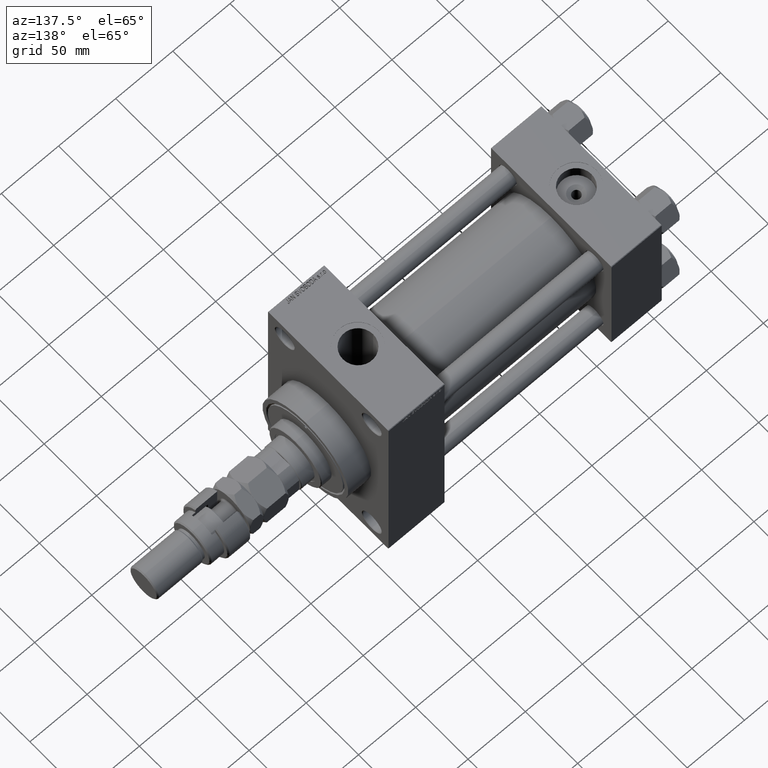
[diagram: clean part render]
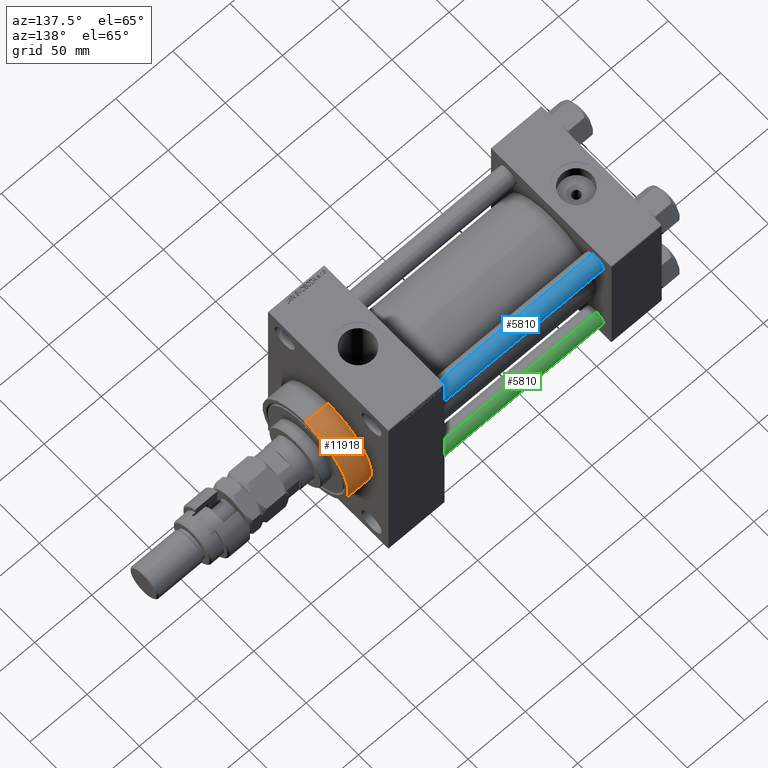
[diagram: same view with three faces highlighted in distinct colors, each labeled with its STEP entity id]
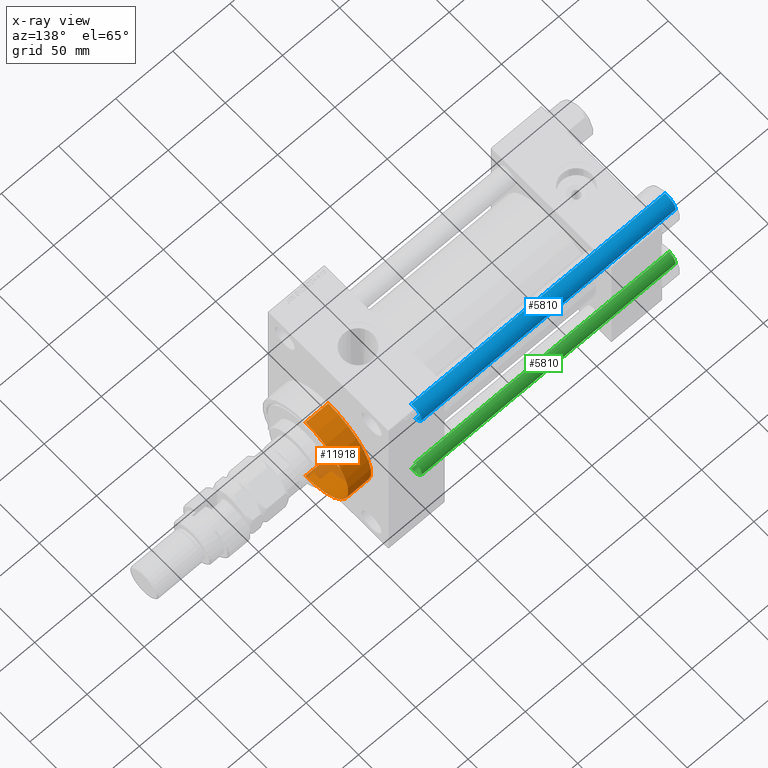
[diagram: x-ray of the same camera — body ghosted, the three highlighted faces saturated]
A machine part, auxiliary view with three faces highlighted in distinct colors.
The next image is the same camera in x-ray (body ghosted, the three faces saturated) — at least one of them is partly hidden behind the body in this view.
Their STEP definitions:

[orange] entity #11918 — the highlighted cylindrical surface (partial cylindrical patch) has radius 41 mm, axis along (-1, -0, -0).
#275 = CARTESIAN_POINT ( 'NONE',  ( 239.0000000000000000, 0.000000000000000000, 0.000000000000000000 ) ) ;
#1669 = AXIS2_PLACEMENT_3D ( 'NONE', #14597, #45898, #21806 ) ;
#2297 = EDGE_LOOP ( 'NONE', ( #18100, #43484, #4691, #24209 ) ) ;
#4691 = ORIENTED_EDGE ( 'NONE', *, *, #40586, .T. ) ;
#6084 = CARTESIAN_POINT ( 'NONE',  ( 259.0000000000000000, 0.000000000000000000, 0.000000000000000000 ) ) ;
#7236 = EDGE_CURVE ( 'NONE', #40888, #41967, #33346, .T. ) ;
#10620 = AXIS2_PLACEMENT_3D ( 'NONE', #6084, #25619, #32830 ) ;
#11918 = ADVANCED_FACE ( 'NONE', ( #26136 ), #45354, .T. ) ;
#12090 = DIRECTION ( 'NONE',  ( 0.000000000000000000, 0.000000000000000000, -1.000000000000000000 ) ) ;
#13815 = CARTESIAN_POINT ( 'NONE',  ( 259.0000000000000000, 0.000000000000000000, 41.00000000000000000 ) ) ;
#14597 = CARTESIAN_POINT ( 'NONE',  ( 259.0000000000000000, 0.000000000000000000, 0.000000000000000000 ) ) ;
#15428 = VERTEX_POINT ( 'NONE', #42956 ) ;
#17822 = CIRCLE ( 'NONE', #18652, 41.00000000000000000 ) ;
#18100 = ORIENTED_EDGE ( 'NONE', *, *, #45056, .F. ) ;
#18652 = AXIS2_PLACEMENT_3D ( 'NONE', #275, #50588, #12090 ) ;
#21366 = CIRCLE ( 'NONE', #1669, 41.00000000000000000 ) ;
#21806 = DIRECTION ( 'NONE',  ( 0.000000000000000000, 0.000000000000000000, -1.000000000000000000 ) ) ;
#24209 = ORIENTED_EDGE ( 'NONE', *, *, #7236, .F. ) ;
#25619 = DIRECTION ( 'NONE',  ( -1.000000000000000000, -0.000000000000000000, -0.000000000000000000 ) ) ;
#26136 = FACE_OUTER_BOUND ( 'NONE', #2297, .T. ) ;
#26242 = EDGE_CURVE ( 'NONE', #30637, #15428, #27209, .T. ) ;
#27209 = LINE ( 'NONE', #46688, #31353 ) ;
#29486 = DIRECTION ( 'NONE',  ( -1.000000000000000000, -0.000000000000000000, -0.000000000000000000 ) ) ;
#30637 = VERTEX_POINT ( 'NONE', #50471 ) ;
#31353 = VECTOR ( 'NONE', #42838, 1000.000000000000000 ) ;
#32826 = CARTESIAN_POINT ( 'NONE',  ( 239.0000000000000000, 0.000000000000000000, 41.00000000000000000 ) ) ;
#32830 = DIRECTION ( 'NONE',  ( 0.000000000000000000, 0.000000000000000000, 1.000000000000000000 ) ) ;
#33346 = LINE ( 'NONE', #13815, #50736 ) ;
#40586 = EDGE_CURVE ( 'NONE', #15428, #41967, #17822, .T. ) ;
#40888 = VERTEX_POINT ( 'NONE', #49255 ) ;
#41967 = VERTEX_POINT ( 'NONE', #32826 ) ;
#42838 = DIRECTION ( 'NONE',  ( -1.000000000000000000, -0.000000000000000000, -0.000000000000000000 ) ) ;
#42956 = CARTESIAN_POINT ( 'NONE',  ( 239.0000000000000000, 5.021051876504148963E-15, -41.00000000000000000 ) ) ;
#43484 = ORIENTED_EDGE ( 'NONE', *, *, #26242, .T. ) ;
#45056 = EDGE_CURVE ( 'NONE', #30637, #40888, #21366, .T. ) ;
#45354 = CYLINDRICAL_SURFACE ( 'NONE', #10620, 41.00000000000000000 ) ;
#45898 = DIRECTION ( 'NONE',  ( 1.000000000000000000, 0.000000000000000000, 0.000000000000000000 ) ) ;
#46688 = CARTESIAN_POINT ( 'NONE',  ( 259.0000000000000000, 5.021051876504148963E-15, -41.00000000000000000 ) ) ;
#49255 = CARTESIAN_POINT ( 'NONE',  ( 259.0000000000000000, 0.000000000000000000, 41.00000000000000000 ) ) ;
#50471 = CARTESIAN_POINT ( 'NONE',  ( 259.0000000000000000, 5.021051876504148963E-15, -41.00000000000000000 ) ) ;
#50588 = DIRECTION ( 'NONE',  ( 1.000000000000000000, 0.000000000000000000, 0.000000000000000000 ) ) ;
#50736 = VECTOR ( 'NONE', #29486, 1000.000000000000000 ) ;

[blue] entity #5810 — the highlighted cylindrical surface (edge-blend (fillet) strip) has radius 8 mm, axis along (-1, -0, 0).
#1490 = EDGE_LOOP ( 'NONE', ( #4131, #46947, #33945, #39768 ) ) ;
#3206 = CARTESIAN_POINT ( 'NONE',  ( -8.000000000000000000, 0.000000000000000000, 0.5000000000001669775 ) ) ;
#4131 = ORIENTED_EDGE ( 'NONE', *, *, #36101, .T. ) ;
#4150 = CARTESIAN_POINT ( 'NONE',  ( 0.000000000000000000, 0.000000000000000000, 223.0000000000000000 ) ) ;
#5810 = ADVANCED_FACE ( 'NONE', ( #31401 ), #16213, .T. ) ;
#6379 = DIRECTION ( 'NONE',  ( -0.000000000000000000, -0.000000000000000000, 1.000000000000000000 ) ) ;
#9538 = DIRECTION ( 'NONE',  ( 0.000000000000000000, 0.000000000000000000, -1.000000000000000000 ) ) ;
#10539 = CARTESIAN_POINT ( 'NONE',  ( 8.000000000000000000, 9.797174393178823685E-16, 223.0000000000000000 ) ) ;
#11652 = DIRECTION ( 'NONE',  ( -0.000000000000000000, -0.000000000000000000, -1.000000000000000000 ) ) ;
#11893 = CARTESIAN_POINT ( 'NONE',  ( -8.000000000000000000, 0.000000000000000000, 222.5000000000001137 ) ) ;
#13009 = AXIS2_PLACEMENT_3D ( 'NONE', #4150, #22941, #31644 ) ;
#13472 = CARTESIAN_POINT ( 'NONE',  ( 8.000000000000000000, 9.797174393178823685E-16, 222.5000000000001137 ) ) ;
#14494 = AXIS2_PLACEMENT_3D ( 'NONE', #44696, #9538, #18274 ) ;
#16213 = CYLINDRICAL_SURFACE ( 'NONE', #13009, 8.000000000000000000 ) ;
#17550 = EDGE_CURVE ( 'NONE', #21055, #30951, #21485, .T. ) ;
#18252 = VERTEX_POINT ( 'NONE', #11893 ) ;
#18274 = DIRECTION ( 'NONE',  ( 1.000000000000000000, 0.000000000000000000, 0.000000000000000000 ) ) ;
#19596 = CARTESIAN_POINT ( 'NONE',  ( 8.000000000000000000, 9.797174393178823685E-16, 0.5000000000001669775 ) ) ;
#19635 = LINE ( 'NONE', #23747, #45251 ) ;
#21055 = VERTEX_POINT ( 'NONE', #19596 ) ;
#21485 = CIRCLE ( 'NONE', #50138, 8.000000000000000000 ) ;
#22490 = EDGE_CURVE ( 'NONE', #29036, #21055, #26988, .T. ) ;
#22941 = DIRECTION ( 'NONE',  ( -0.000000000000000000, -0.000000000000000000, -1.000000000000000000 ) ) ;
#23747 = CARTESIAN_POINT ( 'NONE',  ( -8.000000000000000000, 0.000000000000000000, 223.0000000000000000 ) ) ;
#25964 = EDGE_CURVE ( 'NONE', #18252, #30951, #19635, .T. ) ;
#26988 = LINE ( 'NONE', #10539, #35416 ) ;
#29036 = VERTEX_POINT ( 'NONE', #13472 ) ;
#30951 = VERTEX_POINT ( 'NONE', #3206 ) ;
#31401 = FACE_OUTER_BOUND ( 'NONE', #1490, .T. ) ;
#31644 = DIRECTION ( 'NONE',  ( -1.000000000000000000, 0.000000000000000000, 0.000000000000000000 ) ) ;
#33372 = CARTESIAN_POINT ( 'NONE',  ( 0.000000000000000000, 0.000000000000000000, 0.5000000000001669775 ) ) ;
#33874 = DIRECTION ( 'NONE',  ( 1.000000000000000000, 0.000000000000000000, 0.000000000000000000 ) ) ;
#33945 = ORIENTED_EDGE ( 'NONE', *, *, #17550, .T. ) ;
#35416 = VECTOR ( 'NONE', #38532, 1000.000000000000000 ) ;
#36101 = EDGE_CURVE ( 'NONE', #18252, #29036, #40716, .T. ) ;
#38532 = DIRECTION ( 'NONE',  ( -0.000000000000000000, -0.000000000000000000, -1.000000000000000000 ) ) ;
#39768 = ORIENTED_EDGE ( 'NONE', *, *, #25964, .F. ) ;
#40716 = CIRCLE ( 'NONE', #14494, 8.000000000000000000 ) ;
#44696 = CARTESIAN_POINT ( 'NONE',  ( 0.000000000000000000, 0.000000000000000000, 222.5000000000001137 ) ) ;
#45251 = VECTOR ( 'NONE', #11652, 1000.000000000000000 ) ;
#46947 = ORIENTED_EDGE ( 'NONE', *, *, #22490, .T. ) ;
#50138 = AXIS2_PLACEMENT_3D ( 'NONE', #33372, #6379, #33874 ) ;

[green] entity #5810 — the highlighted cylindrical surface (edge-blend (fillet) strip) has radius 8 mm, axis along (1, -0, 0).
#1490 = EDGE_LOOP ( 'NONE', ( #4131, #46947, #33945, #39768 ) ) ;
#3206 = CARTESIAN_POINT ( 'NONE',  ( -8.000000000000000000, 0.000000000000000000, 0.5000000000001669775 ) ) ;
#4131 = ORIENTED_EDGE ( 'NONE', *, *, #36101, .T. ) ;
#4150 = CARTESIAN_POINT ( 'NONE',  ( 0.000000000000000000, 0.000000000000000000, 223.0000000000000000 ) ) ;
#5810 = ADVANCED_FACE ( 'NONE', ( #31401 ), #16213, .T. ) ;
#6379 = DIRECTION ( 'NONE',  ( -0.000000000000000000, -0.000000000000000000, 1.000000000000000000 ) ) ;
#9538 = DIRECTION ( 'NONE',  ( 0.000000000000000000, 0.000000000000000000, -1.000000000000000000 ) ) ;
#10539 = CARTESIAN_POINT ( 'NONE',  ( 8.000000000000000000, 9.797174393178823685E-16, 223.0000000000000000 ) ) ;
#11652 = DIRECTION ( 'NONE',  ( -0.000000000000000000, -0.000000000000000000, -1.000000000000000000 ) ) ;
#11893 = CARTESIAN_POINT ( 'NONE',  ( -8.000000000000000000, 0.000000000000000000, 222.5000000000001137 ) ) ;
#13009 = AXIS2_PLACEMENT_3D ( 'NONE', #4150, #22941, #31644 ) ;
#13472 = CARTESIAN_POINT ( 'NONE',  ( 8.000000000000000000, 9.797174393178823685E-16, 222.5000000000001137 ) ) ;
#14494 = AXIS2_PLACEMENT_3D ( 'NONE', #44696, #9538, #18274 ) ;
#16213 = CYLINDRICAL_SURFACE ( 'NONE', #13009, 8.000000000000000000 ) ;
#17550 = EDGE_CURVE ( 'NONE', #21055, #30951, #21485, .T. ) ;
#18252 = VERTEX_POINT ( 'NONE', #11893 ) ;
#18274 = DIRECTION ( 'NONE',  ( 1.000000000000000000, 0.000000000000000000, 0.000000000000000000 ) ) ;
#19596 = CARTESIAN_POINT ( 'NONE',  ( 8.000000000000000000, 9.797174393178823685E-16, 0.5000000000001669775 ) ) ;
#19635 = LINE ( 'NONE', #23747, #45251 ) ;
#21055 = VERTEX_POINT ( 'NONE', #19596 ) ;
#21485 = CIRCLE ( 'NONE', #50138, 8.000000000000000000 ) ;
#22490 = EDGE_CURVE ( 'NONE', #29036, #21055, #26988, .T. ) ;
#22941 = DIRECTION ( 'NONE',  ( -0.000000000000000000, -0.000000000000000000, -1.000000000000000000 ) ) ;
#23747 = CARTESIAN_POINT ( 'NONE',  ( -8.000000000000000000, 0.000000000000000000, 223.0000000000000000 ) ) ;
#25964 = EDGE_CURVE ( 'NONE', #18252, #30951, #19635, .T. ) ;
#26988 = LINE ( 'NONE', #10539, #35416 ) ;
#29036 = VERTEX_POINT ( 'NONE', #13472 ) ;
#30951 = VERTEX_POINT ( 'NONE', #3206 ) ;
#31401 = FACE_OUTER_BOUND ( 'NONE', #1490, .T. ) ;
#31644 = DIRECTION ( 'NONE',  ( -1.000000000000000000, 0.000000000000000000, 0.000000000000000000 ) ) ;
#33372 = CARTESIAN_POINT ( 'NONE',  ( 0.000000000000000000, 0.000000000000000000, 0.5000000000001669775 ) ) ;
#33874 = DIRECTION ( 'NONE',  ( 1.000000000000000000, 0.000000000000000000, 0.000000000000000000 ) ) ;
#33945 = ORIENTED_EDGE ( 'NONE', *, *, #17550, .T. ) ;
#35416 = VECTOR ( 'NONE', #38532, 1000.000000000000000 ) ;
#36101 = EDGE_CURVE ( 'NONE', #18252, #29036, #40716, .T. ) ;
#38532 = DIRECTION ( 'NONE',  ( -0.000000000000000000, -0.000000000000000000, -1.000000000000000000 ) ) ;
#39768 = ORIENTED_EDGE ( 'NONE', *, *, #25964, .F. ) ;
#40716 = CIRCLE ( 'NONE', #14494, 8.000000000000000000 ) ;
#44696 = CARTESIAN_POINT ( 'NONE',  ( 0.000000000000000000, 0.000000000000000000, 222.5000000000001137 ) ) ;
#45251 = VECTOR ( 'NONE', #11652, 1000.000000000000000 ) ;
#46947 = ORIENTED_EDGE ( 'NONE', *, *, #22490, .T. ) ;
#50138 = AXIS2_PLACEMENT_3D ( 'NONE', #33372, #6379, #33874 ) ;